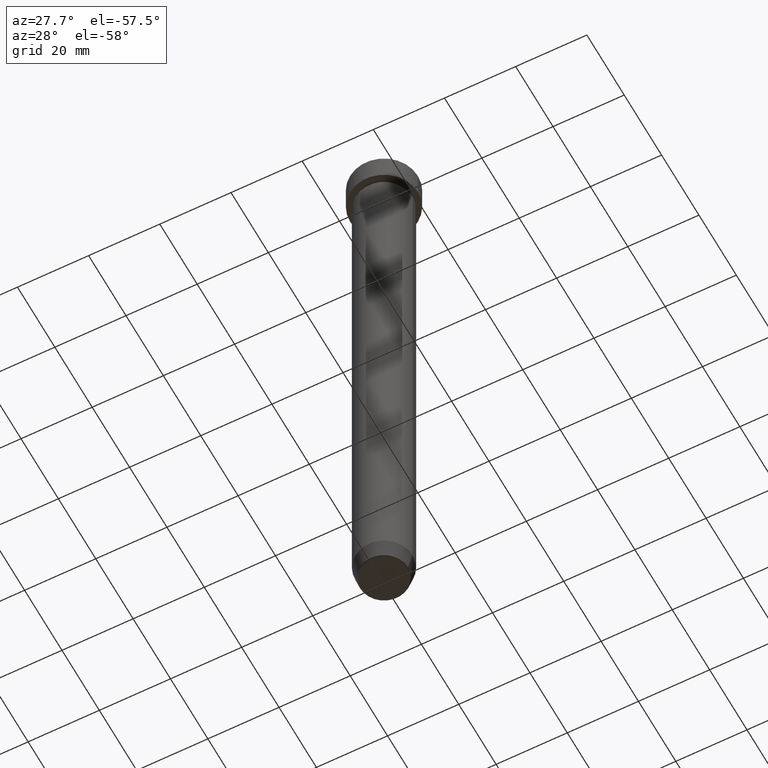
[diagram: clean part render]
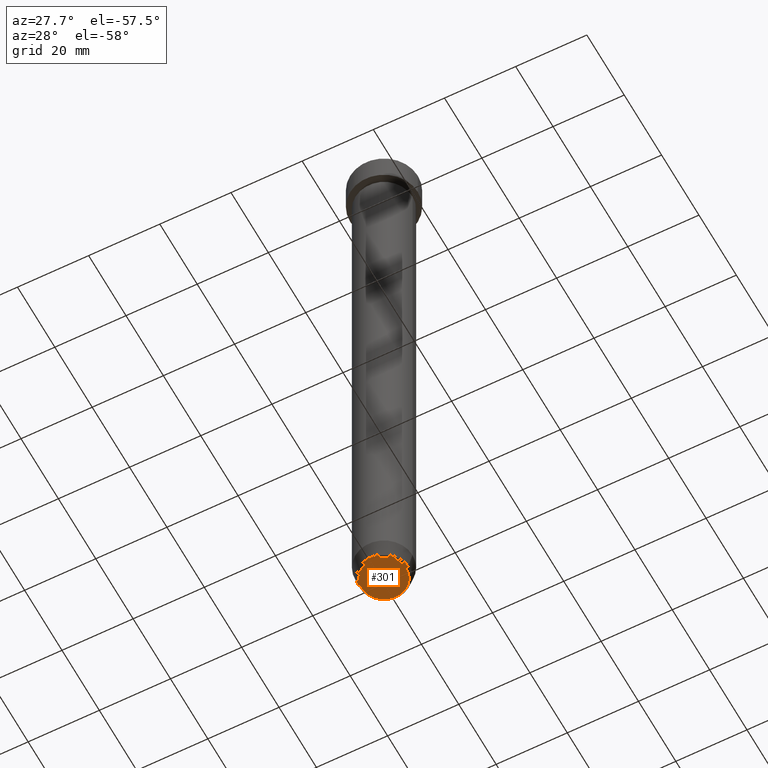
[diagram: same view with one face highlighted and labeled with its STEP entity id]
A machine part, auxiliary view. The second image highlights one B-rep face of the part: STEP entity #301.
In plain terms, the highlighted planar face has unit normal (0, -0, 1).
Its self-contained STEP definition (entity closure, byte-faithful):
#1 = DIRECTION ( 'NONE',  ( 1.000000000000000000, 0.000000000000000000, 0.000000000000000000 ) ) ;
#7 = DIRECTION ( 'NONE',  ( 1.000000000000000000, 0.000000000000000000, 0.000000000000000000 ) ) ;
#31 = EDGE_CURVE ( 'NONE', #54, #538, #279, .T. ) ;
#45 = EDGE_LOOP ( 'NONE', ( #399, #141 ) ) ;
#54 = VERTEX_POINT ( 'NONE', #186 ) ;
#60 = CARTESIAN_POINT ( 'NONE',  ( -6.276590543854910997, 7.982336011935130216E-16, -180.0000000000000000 ) ) ;
#141 = ORIENTED_EDGE ( 'NONE', *, *, #527, .T. ) ;
#153 = DIRECTION ( 'NONE',  ( 0.000000000000000000, 0.000000000000000000, -1.000000000000000000 ) ) ;
#157 = CIRCLE ( 'NONE', #579, 6.276590543854910997 ) ;
#186 = CARTESIAN_POINT ( 'NONE',  ( 6.276590543854910997, 0.000000000000000000, -180.0000000000000000 ) ) ;
#239 = CARTESIAN_POINT ( 'NONE',  ( 0.000000000000000000, 0.000000000000000000, -180.0000000000000000 ) ) ;
#279 = CIRCLE ( 'NONE', #383, 6.276590543854910997 ) ;
#301 = ADVANCED_FACE ( 'NONE', ( #381 ), #577, .F. ) ;
#333 = DIRECTION ( 'NONE',  ( 0.000000000000000000, -0.000000000000000000, 1.000000000000000000 ) ) ;
#340 = CARTESIAN_POINT ( 'NONE',  ( 0.000000000000000000, 1.592040838891559450E-14, -180.0000000000000000 ) ) ;
#358 = CARTESIAN_POINT ( 'NONE',  ( 0.000000000000000000, 0.000000000000000000, -180.0000000000000000 ) ) ;
#370 = DIRECTION ( 'NONE',  ( 1.000000000000000000, 0.000000000000000000, 0.000000000000000000 ) ) ;
#381 = FACE_OUTER_BOUND ( 'NONE', #45, .T. ) ;
#383 = AXIS2_PLACEMENT_3D ( 'NONE', #239, #153, #1 ) ;
#399 = ORIENTED_EDGE ( 'NONE', *, *, #31, .T. ) ;
#409 = DIRECTION ( 'NONE',  ( 0.000000000000000000, 0.000000000000000000, -1.000000000000000000 ) ) ;
#489 = AXIS2_PLACEMENT_3D ( 'NONE', #340, #333, #370 ) ;
#527 = EDGE_CURVE ( 'NONE', #538, #54, #157, .T. ) ;
#538 = VERTEX_POINT ( 'NONE', #60 ) ;
#577 = PLANE ( 'NONE',  #489 ) ;
#579 = AXIS2_PLACEMENT_3D ( 'NONE', #358, #409, #7 ) ;